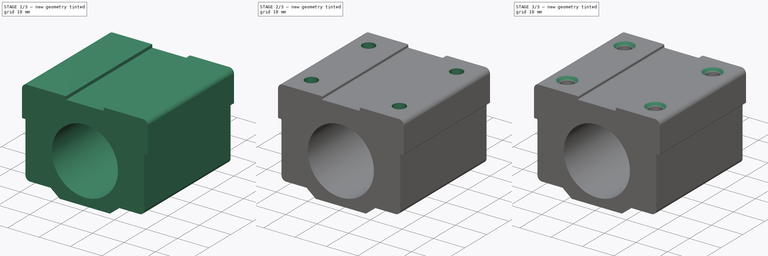
[diagram: build sequence overview — one tinted view per stage of 3, left to right]
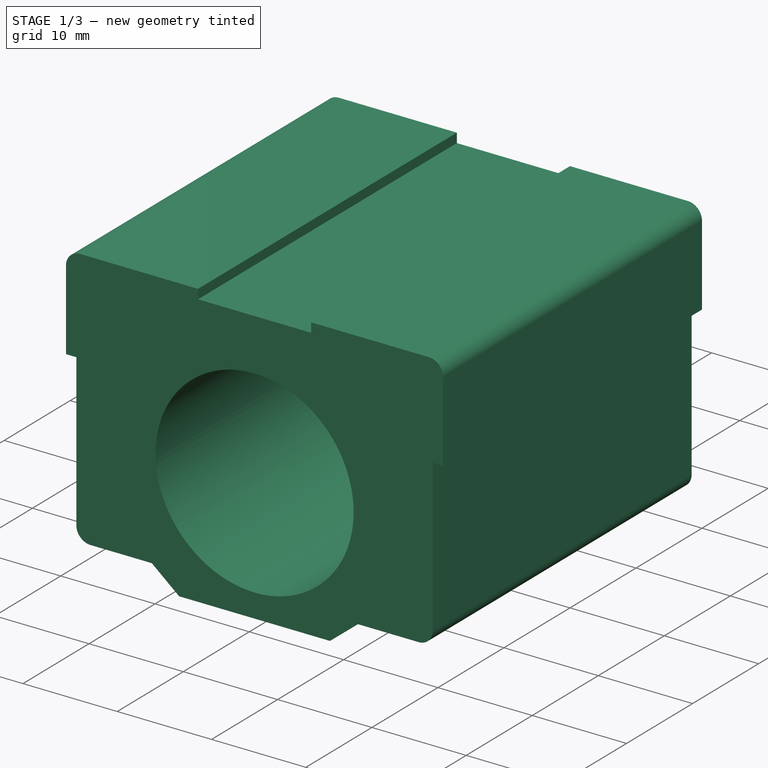
[diagram: stage 1 of 3 — iso view after this stage's code; geometry added in this stage tinted green]
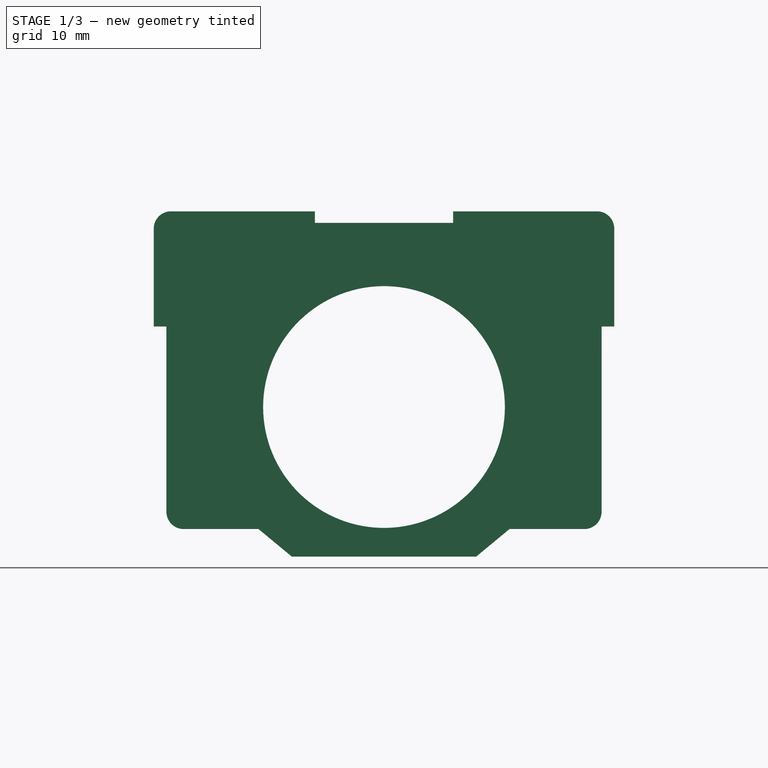
[diagram: stage 1 of 3 — front view after this stage's code; geometry added in this stage tinted green]
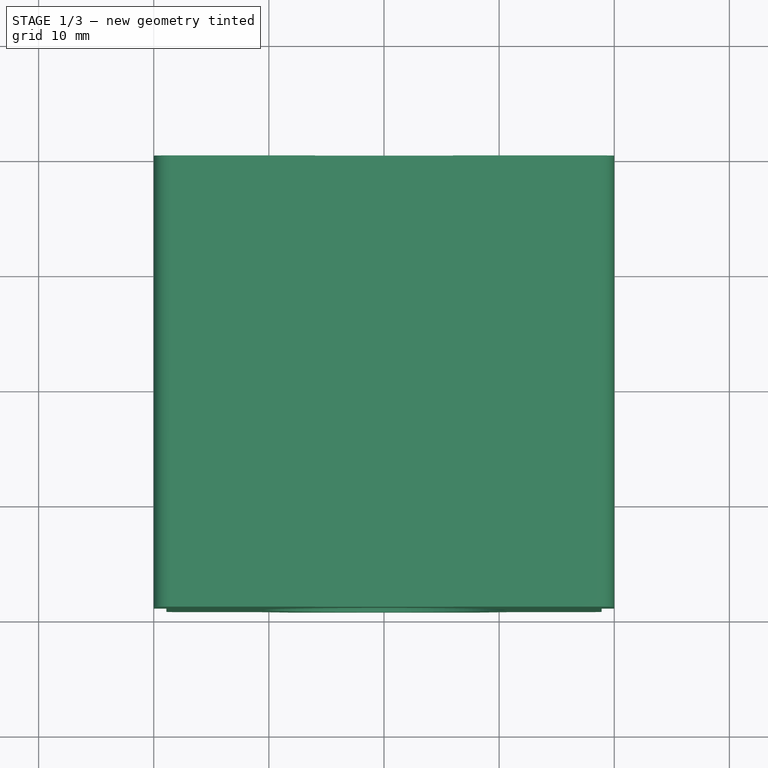
[diagram: stage 1 of 3 — top view after this stage's code; geometry added in this stage tinted green]
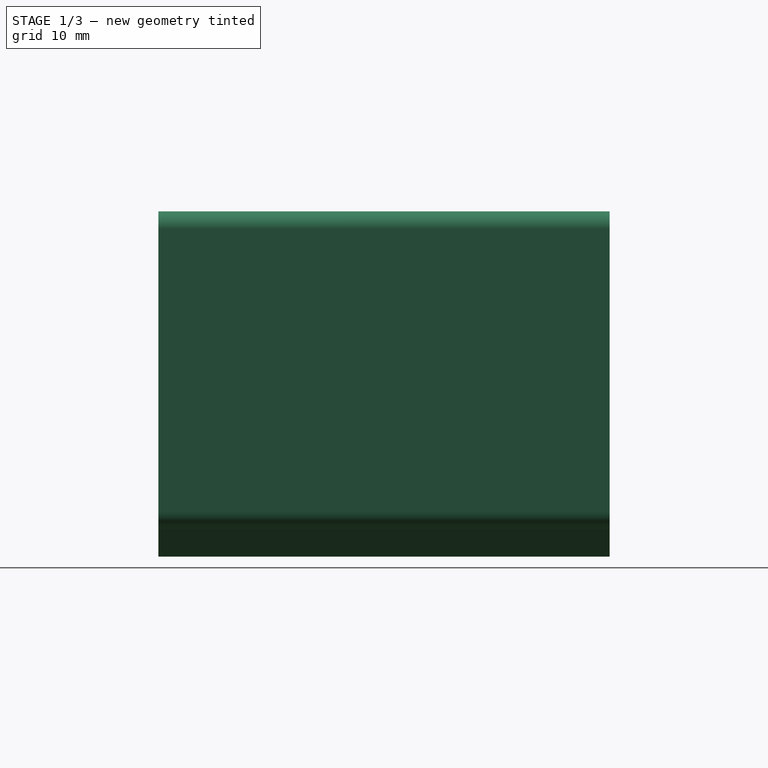
[diagram: stage 1 of 3 — right view after this stage's code; geometry added in this stage tinted green]
FCSTD DOCUMENT  (FreeCAD 0.16R6706 (Git))
Label: SC12uu
License: All rights reserved
LicenseURL: http://en.wikipedia.org/wiki/All_rights_reserved
objects: Sketcher::SketchObject×2, PartDesign::Fillet×2, PartDesign::Chamfer×2, PartDesign::Pad×1, PartDesign::Pocket×1, Part::Feature×1
note: 11 computed .brp shape members not serialized (recipe doc carries the construction recipe); baked Part::Feature solids carry a one-line shape summary decoded from their .brp

FEATURE [Sketcher::SketchObject] Sketch  label="profil"
  Placement = pos=(0,0,0) rot=(1,0,0;1.5708rad)
  sketch-geometry (23):
    g0: Circle CenterX=0 CenterY=0 CenterZ=0 NormalX=0 NormalY=0 NormalZ=1 Radius=10.5
    g1: LineSegment [constr] StartX=-18.9 StartY=0 StartZ=0 EndX=18.9 EndY=0 EndZ=0
    g2: LineSegment StartX=-20 StartY=17 StartZ=0 EndX=-6 EndY=17 EndZ=0
    g3: LineSegment StartX=-6 StartY=17 StartZ=0 EndX=-6 EndY=16 EndZ=0
    g4: LineSegment StartX=-6 StartY=16 StartZ=0 EndX=6 EndY=16 EndZ=0
    g5: LineSegment StartX=6 StartY=16 StartZ=0 EndX=6 EndY=17 EndZ=0
    g6: LineSegment StartX=6 StartY=17 StartZ=0 EndX=20 EndY=17 EndZ=0
    g7: LineSegment StartX=20 StartY=17 StartZ=0 EndX=20 EndY=7 EndZ=0
    g8: LineSegment StartX=20 StartY=7 StartZ=0 EndX=18.9 EndY=7 EndZ=0
    g9: LineSegment StartX=18.9 StartY=7 StartZ=0 EndX=18.9 EndY=-10.6 EndZ=0
    g10: LineSegment StartX=-18.9 StartY=-10.6 StartZ=0 EndX=-18.9 EndY=7 EndZ=0
    g11: LineSegment StartX=-18.9 StartY=7 StartZ=0 EndX=-20 EndY=7 EndZ=0
    g12: LineSegment StartX=-20 StartY=7 StartZ=0 EndX=-20 EndY=17 EndZ=0
    g13: LineSegment [constr] StartX=-18.9 StartY=-10.6 StartZ=0 EndX=18.9 EndY=-10.6 EndZ=0
    g14: LineSegment StartX=-18.9 StartY=-10.6 StartZ=0 EndX=-10.9 EndY=-10.6 EndZ=0
    g15: LineSegment StartX=-10.9 StartY=-10.6 StartZ=0 EndX=-8 EndY=-13 EndZ=0
    g16: LineSegment StartX=-8 StartY=-13 StartZ=0 EndX=8 EndY=-13 EndZ=0
    g17: LineSegment StartX=8 StartY=-13 StartZ=0 EndX=10.9 EndY=-10.6 EndZ=0
    g18: LineSegment StartX=10.9 StartY=-10.6 StartZ=0 EndX=18.9 EndY=-10.6 EndZ=0
    g19: LineSegment [constr] StartX=-20 StartY=17 StartZ=0 EndX=20 EndY=17 EndZ=0
    g20: GeomPoint [constr] X=0 Y=16 Z=0
    g21: LineSegment [constr] StartX=-20 StartY=7 StartZ=0 EndX=20 EndY=7 EndZ=0
    g22: GeomPoint [constr] X=0 Y=-13 Z=0
  constraints (64):
    c: Radius(g0) = 10.5
    c: Coincident(g10,g14)
    c: Coincident(g14,g15)
    c: Coincident(g15,g16)
    c: Horizontal(g16)
    c: Coincident(g16,g17)
    c: Coincident(g17,g18)
    c: Coincident(g18,g9)
    c: Equal(g18,g14)
    c: Vertical(g10)
    c: Coincident(g13,g10)
    c: Coincident(g9,g13)
    c: Horizontal(g13)
    c: PointOnObject(g14,g13)
    c: PointOnObject(g17,g13)
    c: Equal(g2,g6)
    c: Horizontal(g2)
    c: Horizontal(g6)
    c: Horizontal(g4)
    c: Coincident(g4,g5)
    c: Coincident(g5,g6)
    c: Vertical(g5)
    c: Coincident(g3,g2)
    c: Coincident(g3,g4)
    c: Vertical(g3)
    c: Coincident(g12,g2)
    c: Coincident(g12,g11)
    c: Vertical(g12)
    c: Horizontal(g11)
    c: Coincident(g11,g10)
    c: Coincident(g6,g7)
    c: Vertical(g7)
    c: Coincident(g7,g8)
    c: Horizontal(g8)
    c: Coincident(g8,g9)
    c: Vertical(g9)
    c: Equal(g11,g8)
    c: Coincident(g19,g2)
    c: Coincident(g19,g6)
    c: Horizontal(g19)
    c: PointOnObject(g20,g4)
    c: Symmetric(g4,g4,g20)
    c: PointOnObject(g20,g-2)
    c: Coincident(g21,g7)
    c: Horizontal(g21)
    c: Coincident(g11,g21)
    c: PointOnObject(g22,g16)
    c: Symmetric(g16,g16,g22)
    c: PointOnObject(g22,g-2)
    c: PointOnObject(g1,g10)
    c: PointOnObject(g1,g9)
    c: DistanceX(g2,g6) = 40
    c: DistanceY(g4,g5) = 1
    c: DistanceY(g1,g6) = 17
    c: Horizontal(g1)
    c: Coincident(g0,g-1)
    c: PointOnObject(g-1,g1)
    c: DistanceY(g7,g6) = 10
    c: DistanceY(g9,g6) = 27.6
    c: DistanceX(g16,g16) = 16
    c: DistanceY(g16,g6) = 30
    c: DistanceX(g13,g13) = 37.8
    c: DistanceX(g17,g9) = 8
    c: DistanceX(g5,g6) = 14
FEATURE [PartDesign::Pad] Pad
  Length = 39.2
  Length2 = 100
  Placement = pos=(0,0,0) rot=(1,0,0;1.5708rad)
  Sketch = -> Sketch
  Type = 0
FEATURE [PartDesign::Fillet] Fillet
  Base = -> Pad [Edge23,Edge8,Edge1,Edge32]
  Placement = pos=(0,0,0) rot=(1,0,0;1.5708rad)
  Radius = 1.5
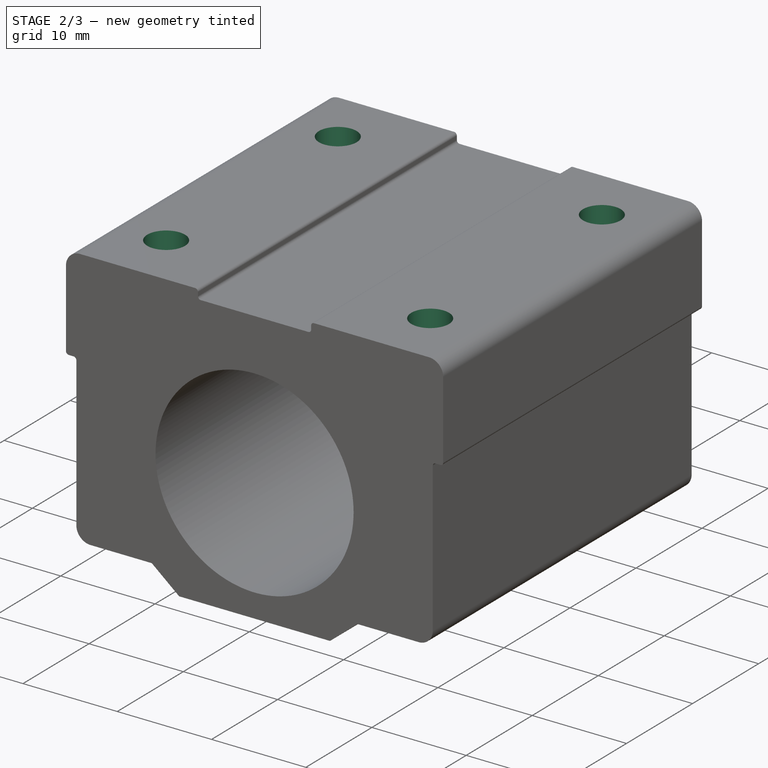
[diagram: stage 2 of 3 — iso view after this stage's code; geometry added in this stage tinted green]
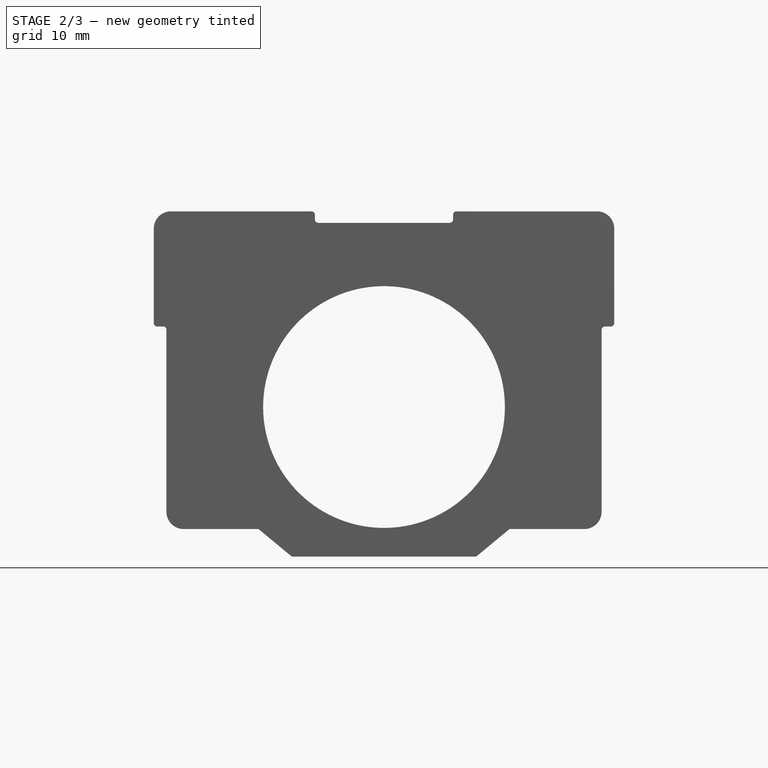
[diagram: stage 2 of 3 — front view after this stage's code; geometry added in this stage tinted green]
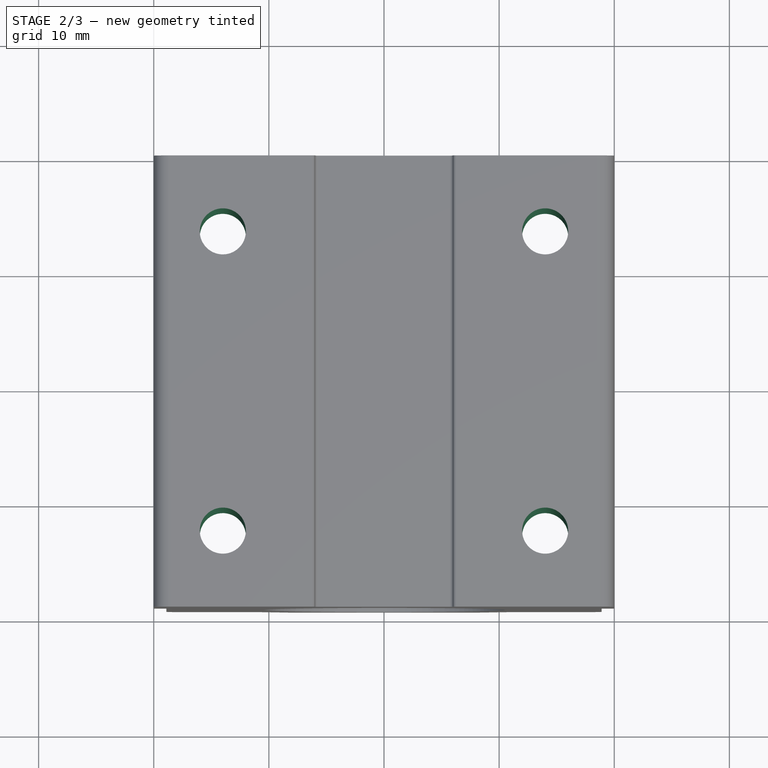
[diagram: stage 2 of 3 — top view after this stage's code; geometry added in this stage tinted green]
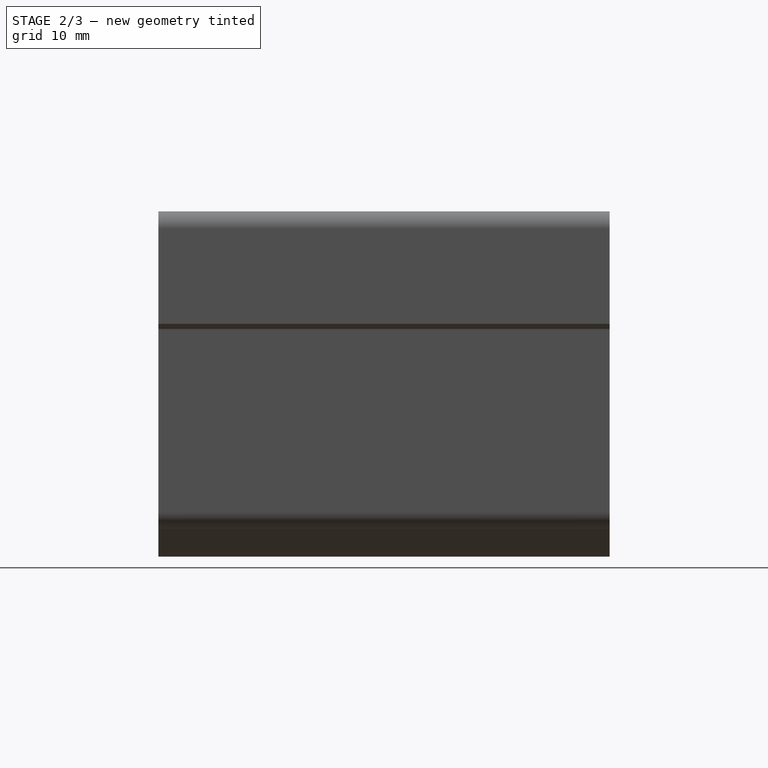
[diagram: stage 2 of 3 — right view after this stage's code; geometry added in this stage tinted green]
FEATURE [PartDesign::Fillet] Fillet001
  Base = -> Fillet [Edge27,Edge3,Edge59,Edge61,Edge54,Edge52,Edge56,Edge58]
  Placement = pos=(0,0,0) rot=(1,0,0;1.5708rad)
  Radius = 0.3
FEATURE [Sketcher::SketchObject] Sketch001
  ExternalGeometry = -> [Fillet001]
  Placement = pos=(0,0,17) rot=(0,0,1;3.14159rad)
  Support = -> Fillet001 [Face14]
  sketch-geometry (15):
    g0: GeomPoint [constr] X=14 Y=39.2 Z=0
    g1: GeomPoint [constr] X=14 Y=0 Z=0
    g2: GeomPoint [constr] X=-14 Y=0 Z=0
    g3: GeomPoint [constr] X=-14 Y=39.2 Z=0
    g4: LineSegment [constr] StartX=14 StartY=39.2 StartZ=0 EndX=14 EndY=0 EndZ=0
    g5: LineSegment [constr] StartX=-14 StartY=0 StartZ=0 EndX=-14 EndY=39.2 EndZ=0
    g6: GeomPoint [constr] X=14 Y=19.6 Z=0
    g7: GeomPoint [constr] X=-14 Y=19.6 Z=0
    g8: LineSegment [constr] StartX=14 StartY=19.6 StartZ=0 EndX=-14 EndY=19.6 EndZ=0
    g9: Circle CenterX=14 CenterY=6.6 CenterZ=0 NormalX=0 NormalY=0 NormalZ=1 Radius=2
    g10: Circle CenterX=14 CenterY=32.6 CenterZ=0 NormalX=0 NormalY=0 NormalZ=1 Radius=2
    g11: LineSegment [constr] StartX=14 StartY=6.6 StartZ=0 EndX=-14 EndY=6.6 EndZ=0
    g12: LineSegment [constr] StartX=14 StartY=32.6 StartZ=0 EndX=-14 EndY=32.6 EndZ=0
    g13: Circle CenterX=-14 CenterY=6.6 CenterZ=0 NormalX=0 NormalY=0 NormalZ=1 Radius=2
    g14: Circle CenterX=-14 CenterY=32.6 CenterZ=0 NormalX=0 NormalY=0 NormalZ=1 Radius=2
  constraints (33):
    c: PointOnObject(g0,g-3)
    c: PointOnObject(g1,g-4)
    c: PointOnObject(g2,g-5)
    c: Coincident(g4,g0)
    c: Coincident(g4,g1)
    c: Coincident(g5,g2)
    c: Coincident(g5,g3)
    c: Vertical(g4)
    c: Vertical(g5)
    c: Symmetric(g0,g3,g-2)
    c: DistanceX(g3,g0) = 28
    c: PointOnObject(g6,g4)
    c: PointOnObject(g7,g5)
    c: Symmetric(g4,g4,g6)
    c: Symmetric(g5,g5,g7)
    c: Coincident(g8,g6)
    c: Coincident(g8,g7)
    c: PointOnObject(g9,g4)
    c: PointOnObject(g10,g4)
    c: Symmetric(g10,g9,g8)
    c: DistanceY(g9,g10) = 26
    c: Radius(g9) = 2
    c: Coincident(g11,g9)
    c: PointOnObject(g11,g5)
    c: Coincident(g12,g10)
    c: PointOnObject(g12,g5)
    c: Horizontal(g12)
    c: Horizontal(g11)
    c: Coincident(g13,g11)
    c: Coincident(g14,g12)
    c: Equal(g9,g10)
    c: Equal(g10,g13)
    c: Equal(g13,g14)
FEATURE [PartDesign::Pocket] Pocket
  Length = 30
  Placement = pos=(0,0,0) rot=(1,0,0;1.5708rad)
  Sketch = -> Sketch001
  Type = 0
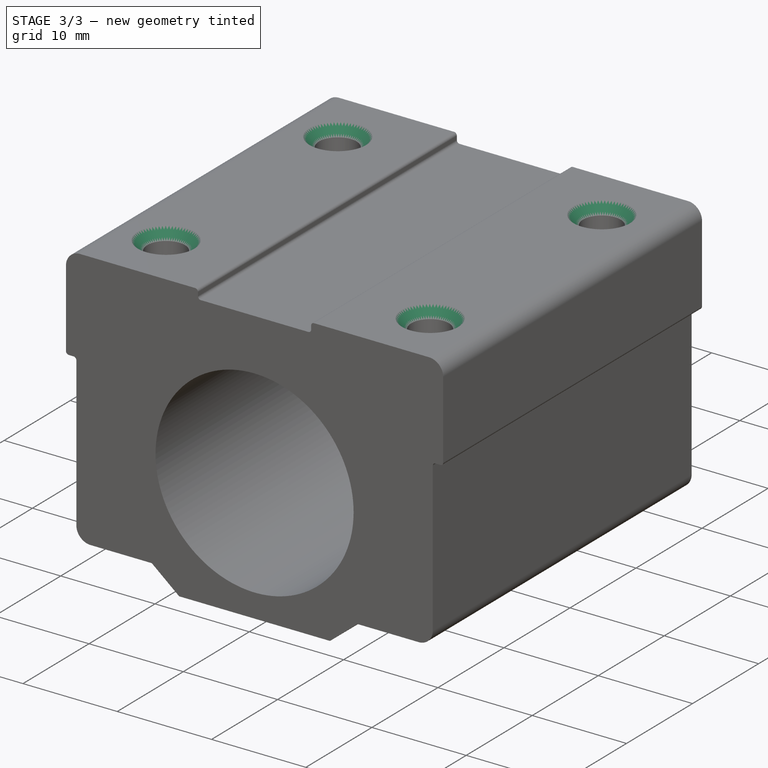
[diagram: stage 3 of 3 — iso view after this stage's code; geometry added in this stage tinted green]
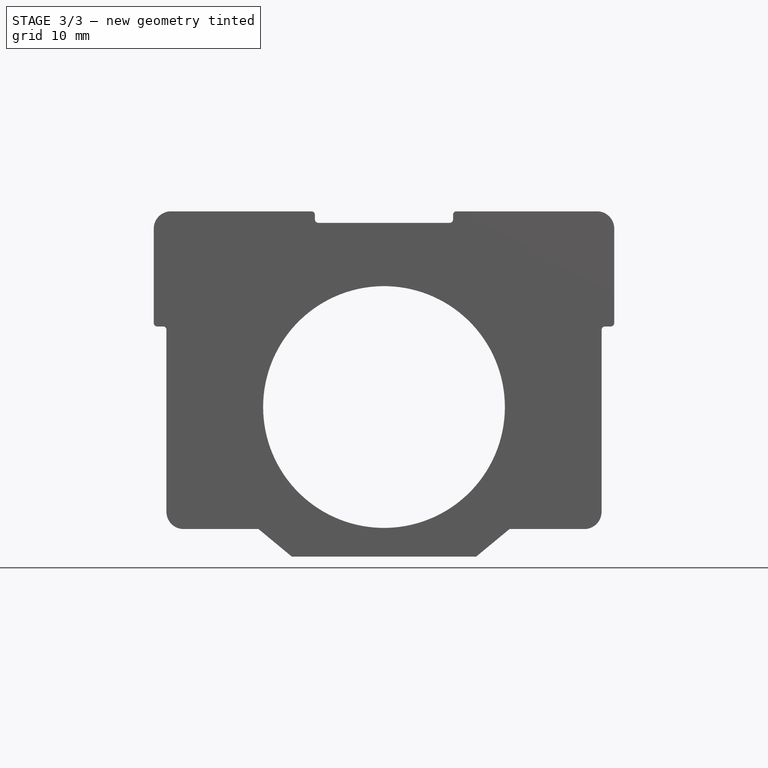
[diagram: stage 3 of 3 — front view after this stage's code; geometry added in this stage tinted green]
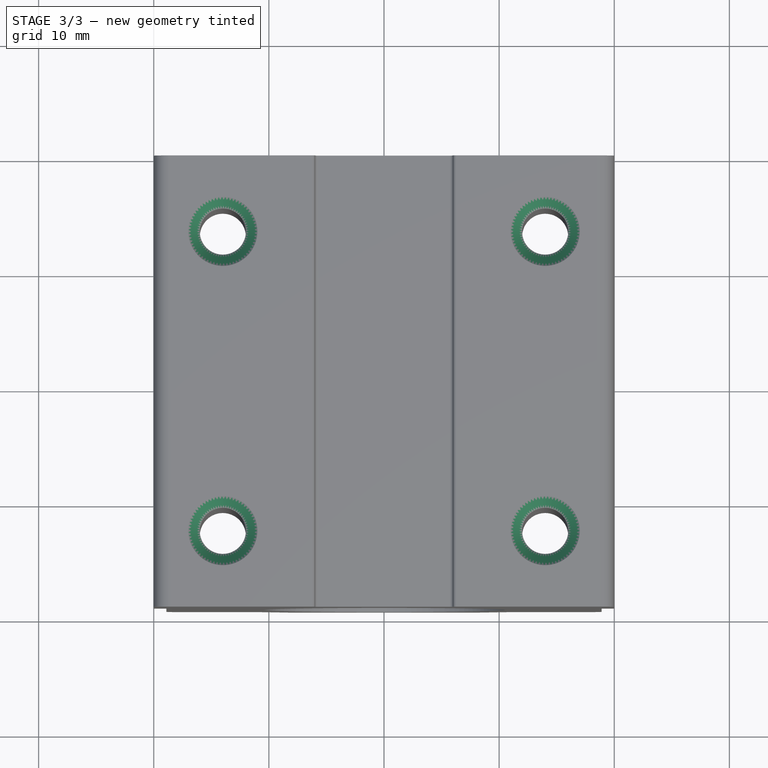
[diagram: stage 3 of 3 — top view after this stage's code; geometry added in this stage tinted green]
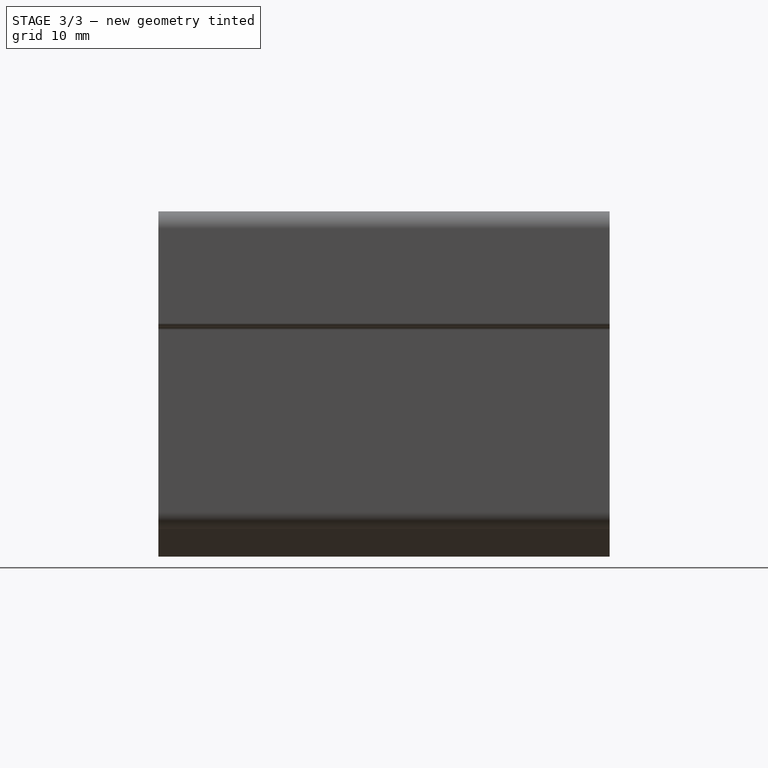
[diagram: stage 3 of 3 — right view after this stage's code; geometry added in this stage tinted green]
FEATURE [PartDesign::Chamfer] Chamfer
  Base = -> Pocket [Edge75,Edge74,Edge94,Edge93]
  Placement = pos=(0,0,0) rot=(1,0,0;1.5708rad)
  Size = 1
FEATURE [Part::Feature] Part__Feature  label="LM12uu001"
  Placement = pos=(-1.3,-17,0) rot=(0,0,1;0rad)
  shape: bbox 21 x 30 x 21 mm, 20 faces (baked)
FEATURE [PartDesign::Chamfer] Chamfer001
  Base = -> Chamfer [Edge70,Edge77,Edge84,Edge83]
  Placement = pos=(0,0,0) rot=(1,0,0;1.5708rad)
  Size = 0.5
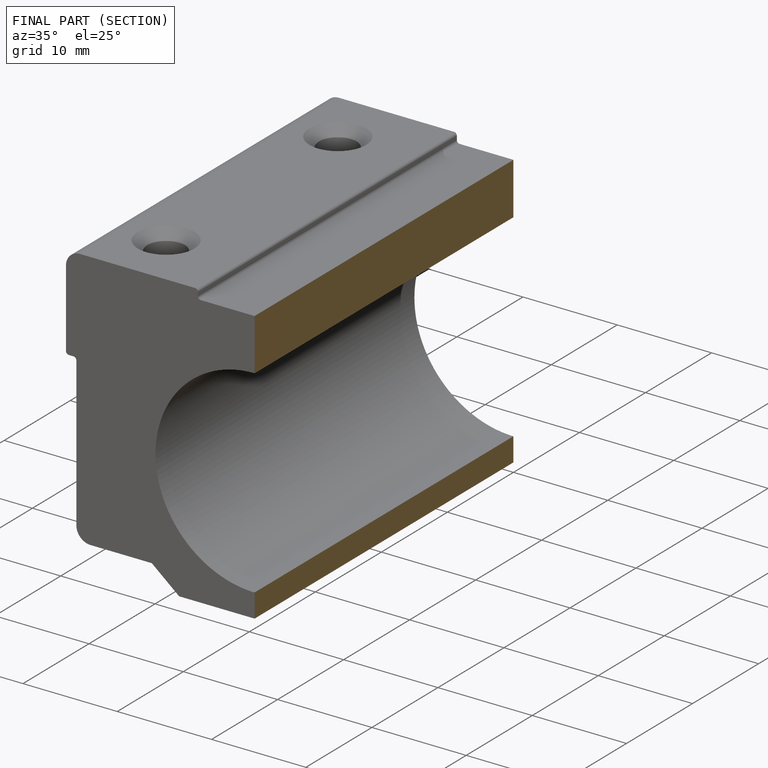
[diagram: finished part — half-section view (interior)]
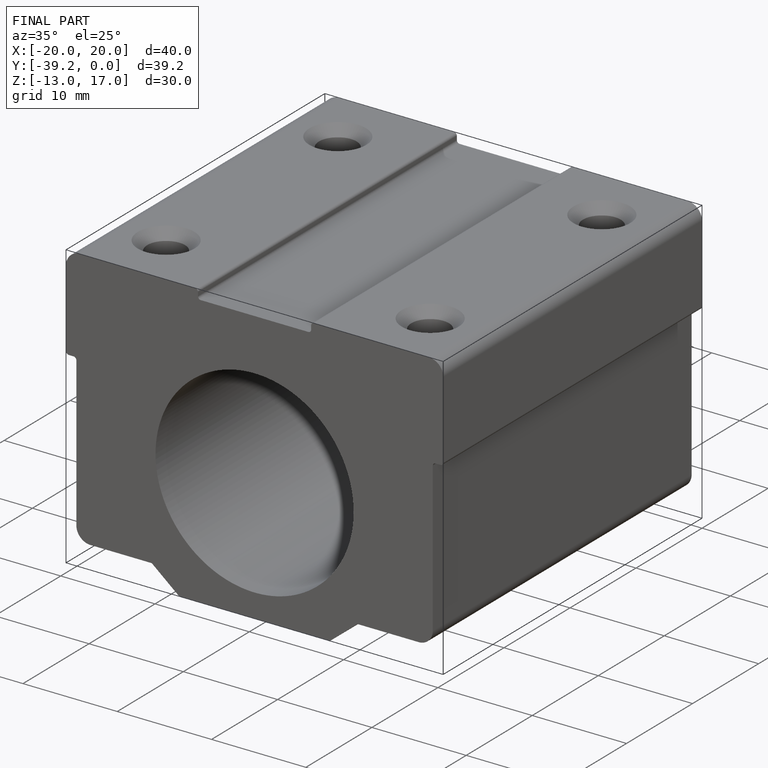
[diagram: finished part — iso view with bounding-box wireframe]
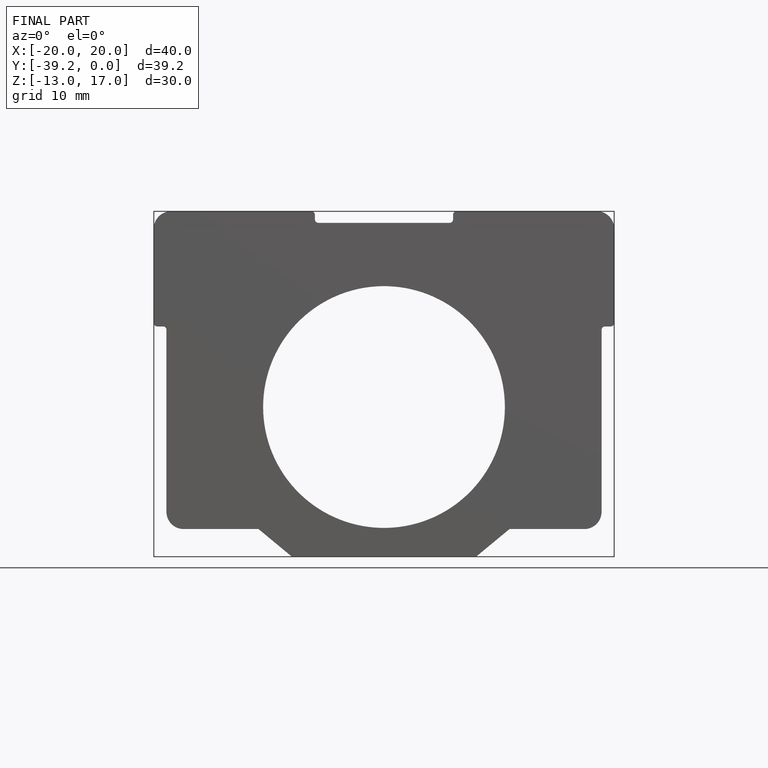
[diagram: finished part — front view with bounding-box wireframe]
